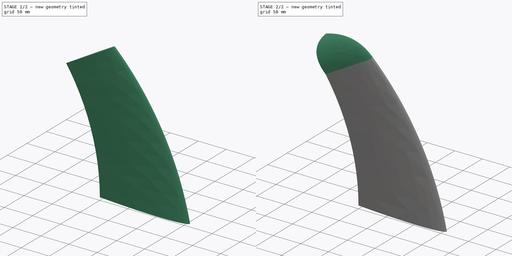
[diagram: build sequence overview — one tinted view per stage of 2, left to right]
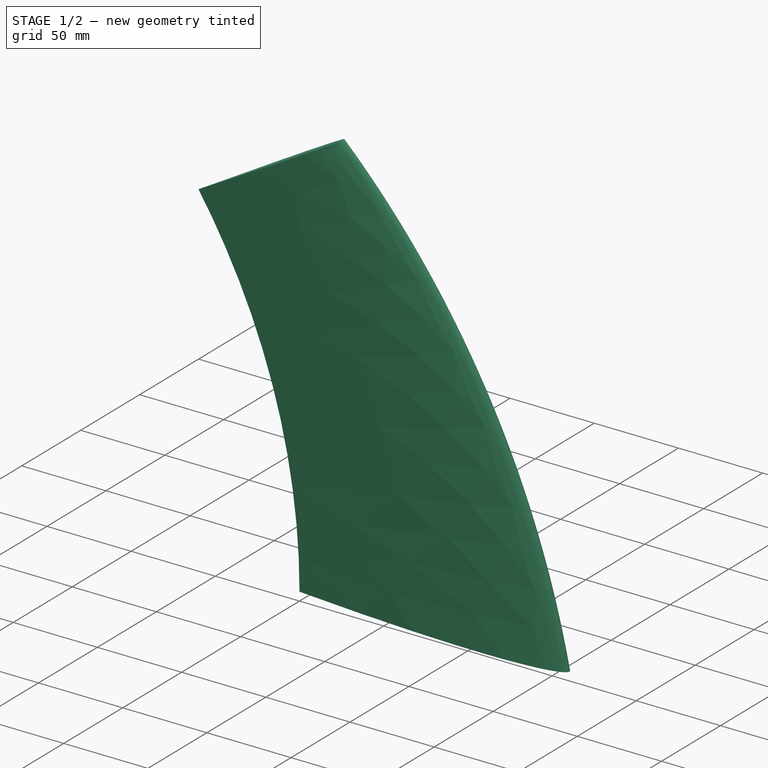
[diagram: stage 1 of 2 — iso view after this stage's code; geometry added in this stage tinted green]
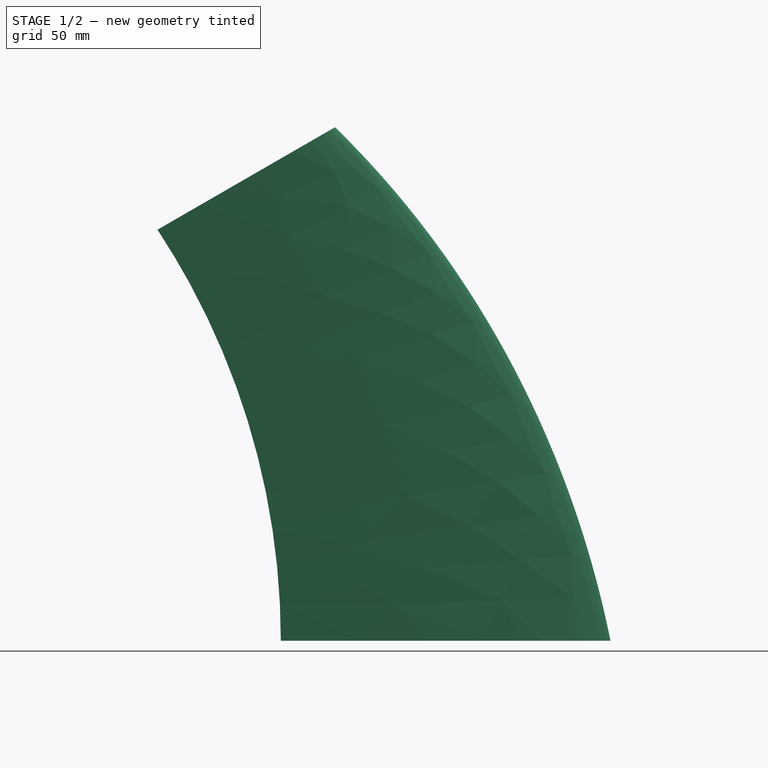
[diagram: stage 1 of 2 — front view after this stage's code; geometry added in this stage tinted green]
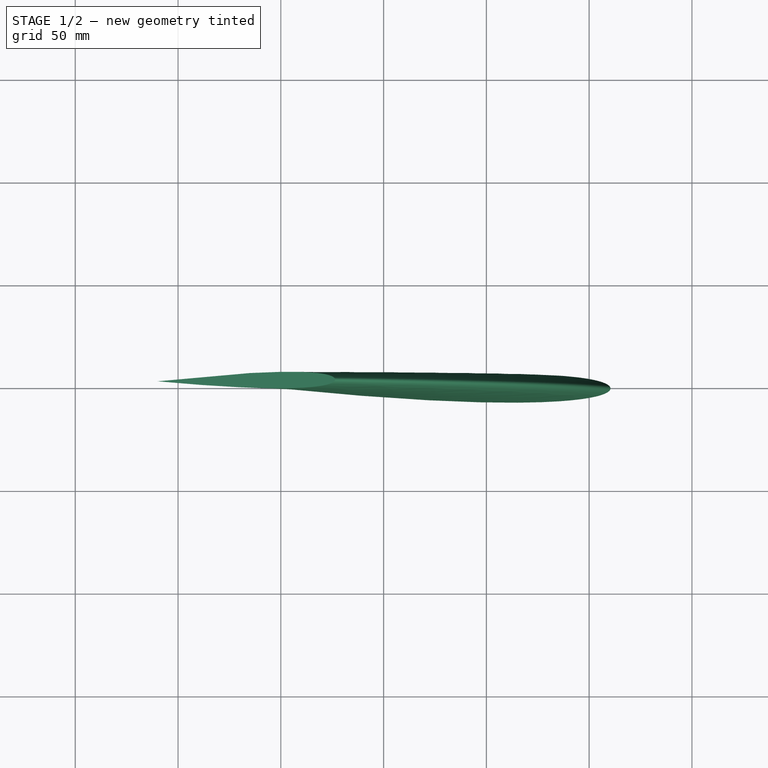
[diagram: stage 1 of 2 — top view after this stage's code; geometry added in this stage tinted green]
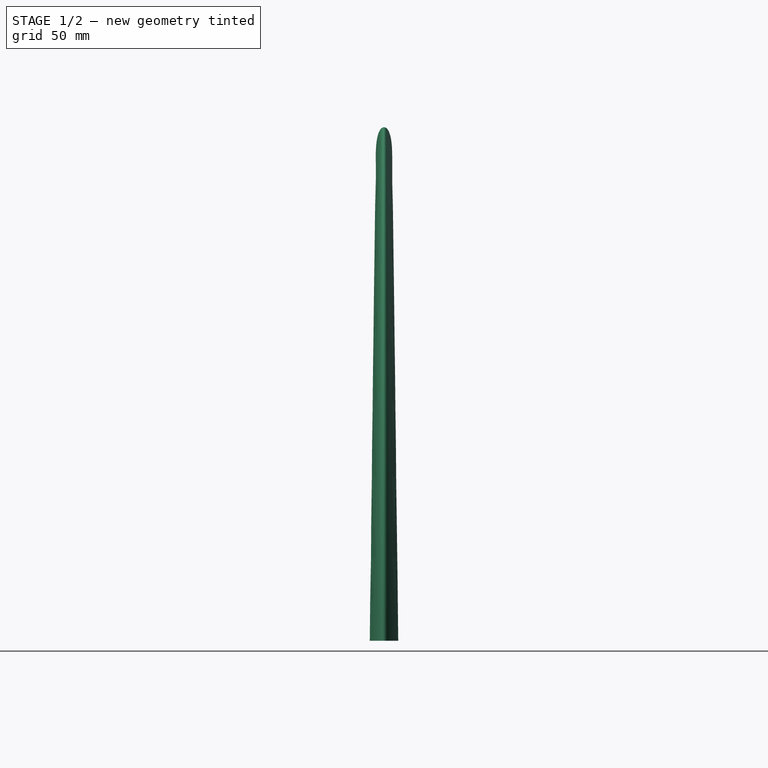
[diagram: stage 1 of 2 — right view after this stage's code; geometry added in this stage tinted green]
FCSTD DOCUMENT  (FreeCAD 1.0R39319 (Git))
Label: wing
License: All rights reserved
LicenseURL: https://en.wikipedia.org/wiki/All_rights_reserved
objects: Sketcher::SketchObject×3, PartDesign::AdditivePipe×1, PartDesign::Point×1, PartDesign::SubShapeBinder×1, PartDesign::AdditiveLoft×1, PartDesign::Body×1
note: 15 computed .brp shape members not serialized (recipe doc carries the construction recipe); baked Part::Feature solids carry a one-line shape summary decoded from their .brp

FEATURE [Sketcher::SketchObject] Sketch
  ArcFitTolerance = 1e-06
  AttachmentSupport = -> [XY_Plane]
  FullyConstrained = false
  MakeInternals = false
  MapMode = 5
  sketch-geometry (9):
    g0-g4: Circle [constr] x5 (B-spline internal-alignment scaffolding for g5; pole/knot coordinates omitted)
    g5: BSplineCurve PolesCount=5 KnotsCount=3 Degree=3 IsPeriodic=0
    g6: GeomPoint [constr] X=0 Y=0 Z=0
    g7: GeomPoint [constr] X=160.382 Y=0 Z=0
    g8: GeomPoint [constr] X=0 Y=0 Z=0
  constraints (10):
    c: Weight(g0) = 1
    c: Equal(g0, g1-g4) x4
    c: InternalAlignment(g0-g4 -> g5) x5
    c: InternalAlignment(g6,g5)
    c: InternalAlignment(g7,g5)
    c: InternalAlignment(g8,g5)
    c: Coincident(g0,g-1)
    c: Coincident(g4,g0)
    c: PointOnObject(g7,g-1)
    c: Symmetric(g1,g3,g-1)
FEATURE [Sketcher::SketchObject] Sketch002
  ArcFitTolerance = 1e-06
  AttachmentSupport = -> [XZ_Plane]
  FullyConstrained = true
  MakeInternals = false
  MapMode = 5
  Placement = pos=(0,0,0) rot=(1,0,0;1.5708rad)
  sketch-geometry (1):
    g0: ArcOfCircle CenterX=-363.333 CenterY=0 CenterZ=0 NormalX=0 NormalY=0 NormalZ=1 AngleXU=0 Radius=363.333 StartAngle=0 EndAngle=0.582914
  constraints (4):
    c: PointOnObject(g0,g-1)
    c: Coincident(g0,g-1)
    c: DistanceY(g0) = 200
    c: DistanceX(g0) = -60
FEATURE [Sketcher::SketchObject] Sketch003
  ArcFitTolerance = 1e-06
  AttachmentOffset = pos=(-60,0,200) rot=(0,1,0;-0.523599rad)
  AttachmentSupport = -> [XY_Plane]
  FullyConstrained = false
  MakeInternals = false
  MapMode = 5
  Placement = pos=(-60,0,200) rot=(0,1,0;5.75959rad)
  sketch-geometry (9):
    g0-g4: Circle [constr] x5 (B-spline internal-alignment scaffolding for g5; pole/knot coordinates omitted)
    g5: BSplineCurve PolesCount=5 KnotsCount=3 Degree=3 IsPeriodic=0
    g6: GeomPoint [constr] X=0 Y=0 Z=0
    g7: GeomPoint [constr] X=99.7317 Y=0 Z=0
    g8: GeomPoint [constr] X=0 Y=0 Z=0
  constraints (10):
    c: Weight(g0) = 1
    c: Equal(g0, g1-g4) x4
    c: InternalAlignment(g0-g4 -> g5) x5
    c: InternalAlignment(g6,g5)
    c: InternalAlignment(g7,g5)
    c: InternalAlignment(g8,g5)
    c: Coincident(g0,g-1)
    c: Coincident(g4,g0)
    c: PointOnObject(g7,g-1)
    c: Symmetric(g1,g3,g-1)
FEATURE [PartDesign::AdditivePipe] AdditivePipe
  AuxilleryCurvelinear = true
  AuxillerySpineTangent = false
  Binormal = (0,0,0)
  Mode = 0
  Profile = -> Sketch [Edge1]
  Refine = true
  Sections = -> [Sketch003]
  Spine = -> Sketch002
  SpineTangent = false
  Suppressed = false
  Transformation = 1
  Transition = 0
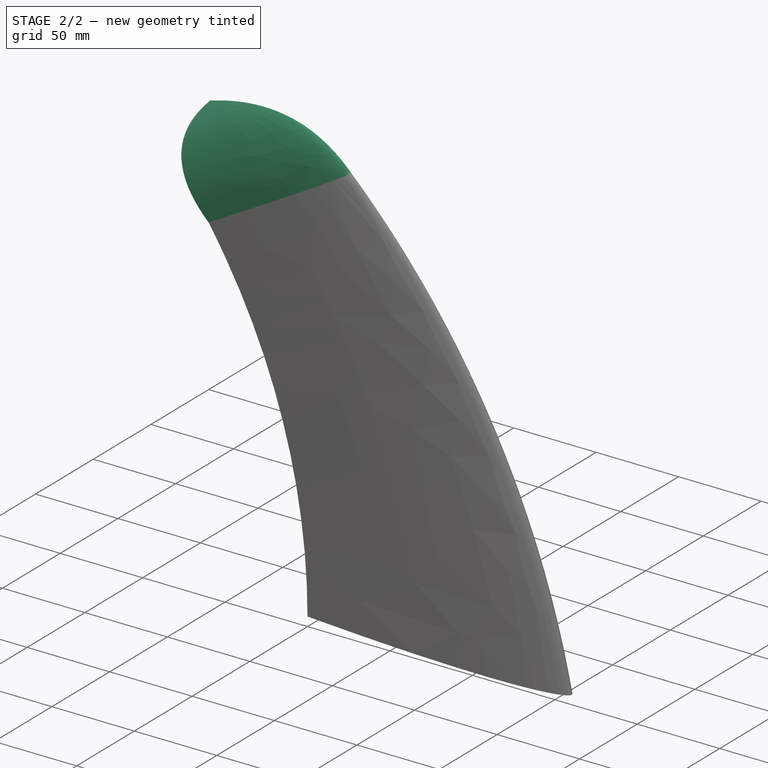
[diagram: stage 2 of 2 — iso view after this stage's code; geometry added in this stage tinted green]
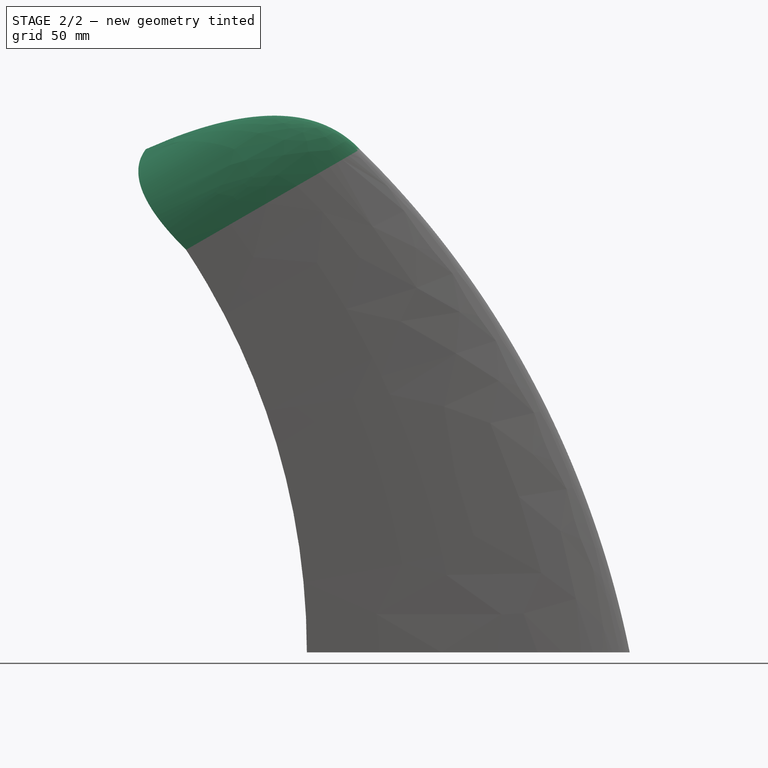
[diagram: stage 2 of 2 — front view after this stage's code; geometry added in this stage tinted green]
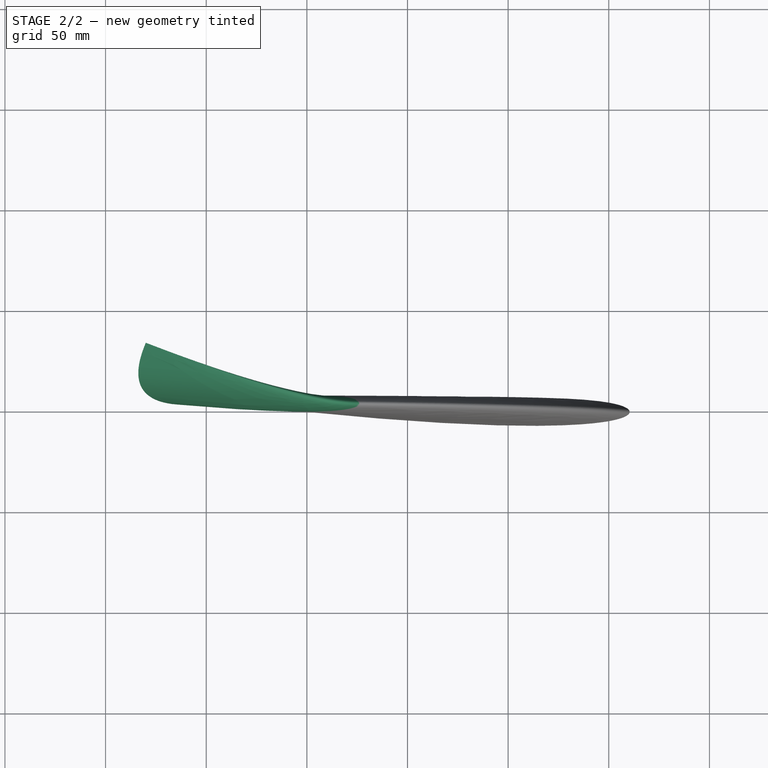
[diagram: stage 2 of 2 — top view after this stage's code; geometry added in this stage tinted green]
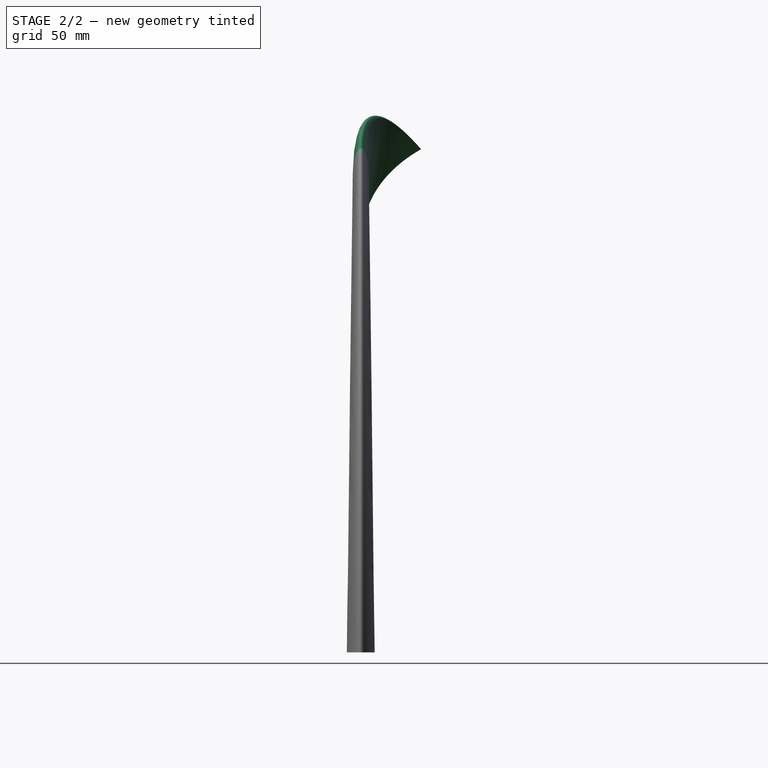
[diagram: stage 2 of 2 — right view after this stage's code; geometry added in this stage tinted green]
FEATURE [PartDesign::Point] DatumPoint
  AttacherType = Attacher::AttachEnginePoint
  AttachmentOffset = pos=(-80,30,250) rot=(0,0,1;0rad)
  AttachmentSupport = -> [XY_Plane]
  MapMode = 32
  Placement = pos=(-80,30,250) rot=(0,0,1;0rad)
FEATURE [PartDesign::SubShapeBinder] Binder
  BindCopyOnChange = 0
  BindMode = 0
  ClaimChildren = false
  Context = -> Body [Binder.]
  Fuse = false
  MakeFace = true
  OffsetFill = false
  OffsetIntersection = false
  OffsetJoinType = 0
  OffsetOpenResult = false
  PartialLoad = false
  Placement = pos=(-2,0,2) rot=(0,0,1;0rad)
  Refine = true
  Relative = true
  Support = -> [AdditivePipe[Face3]]
  _Version = 2
FEATURE [PartDesign::AdditiveLoft] AdditiveLoft
  BaseFeature = -> AdditivePipe
  Closed = false
  Profile = -> AdditivePipe [Face3]
  Refine = true
  Ruled = false
  Sections = -> [Binder,DatumPoint]
  Suppressed = false
FEATURE [PartDesign::Body] Body
  AllowCompound = false
  Group = -> [Sketch,Sketch002,Sketch003,AdditivePipe,DatumPoint,Binder,AdditiveLoft]
  Origin = -> Origin
  Tip = -> AdditiveLoft
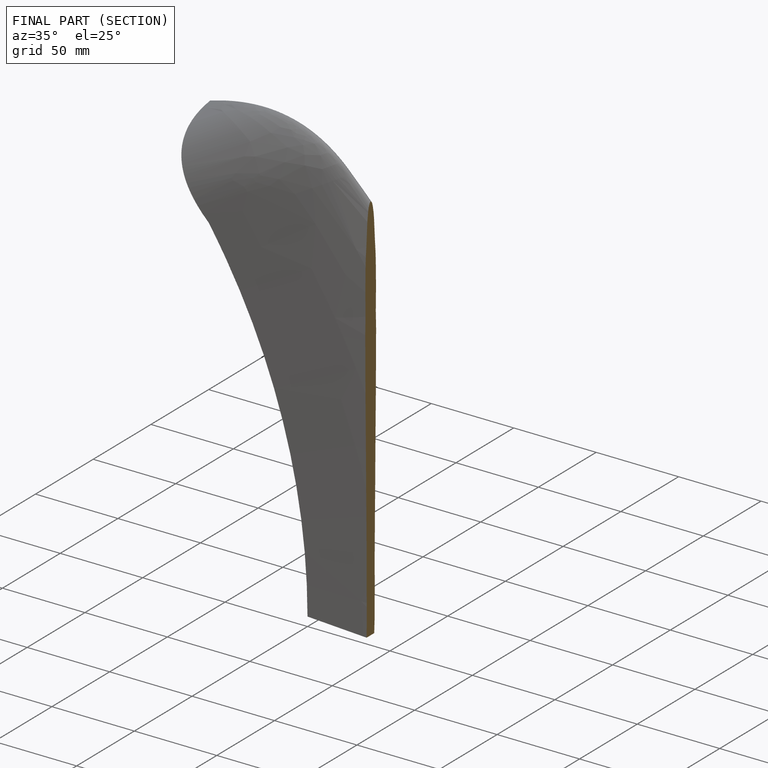
[diagram: finished part — half-section view (interior)]
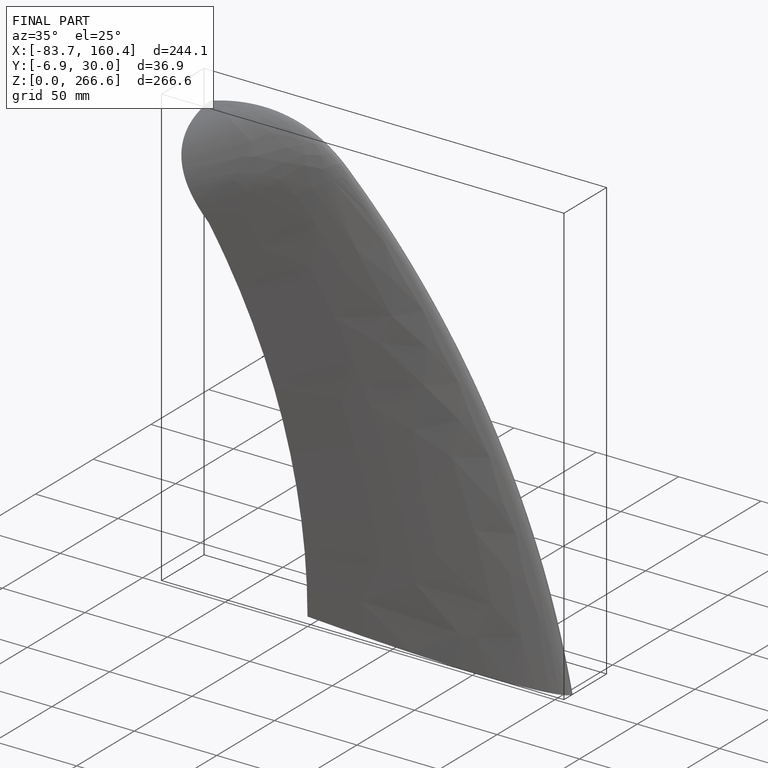
[diagram: finished part — iso view with bounding-box wireframe]
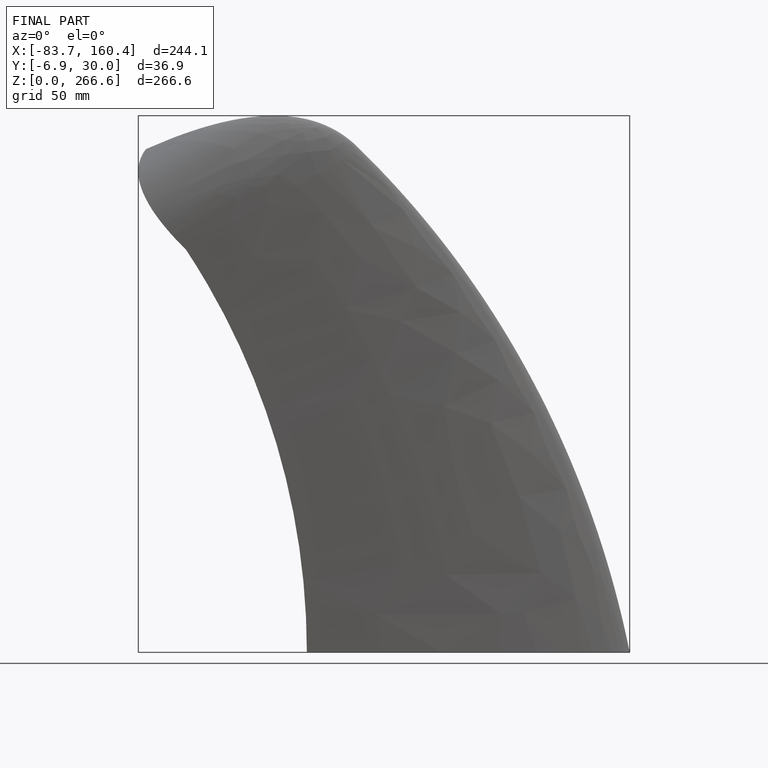
[diagram: finished part — front view with bounding-box wireframe]
